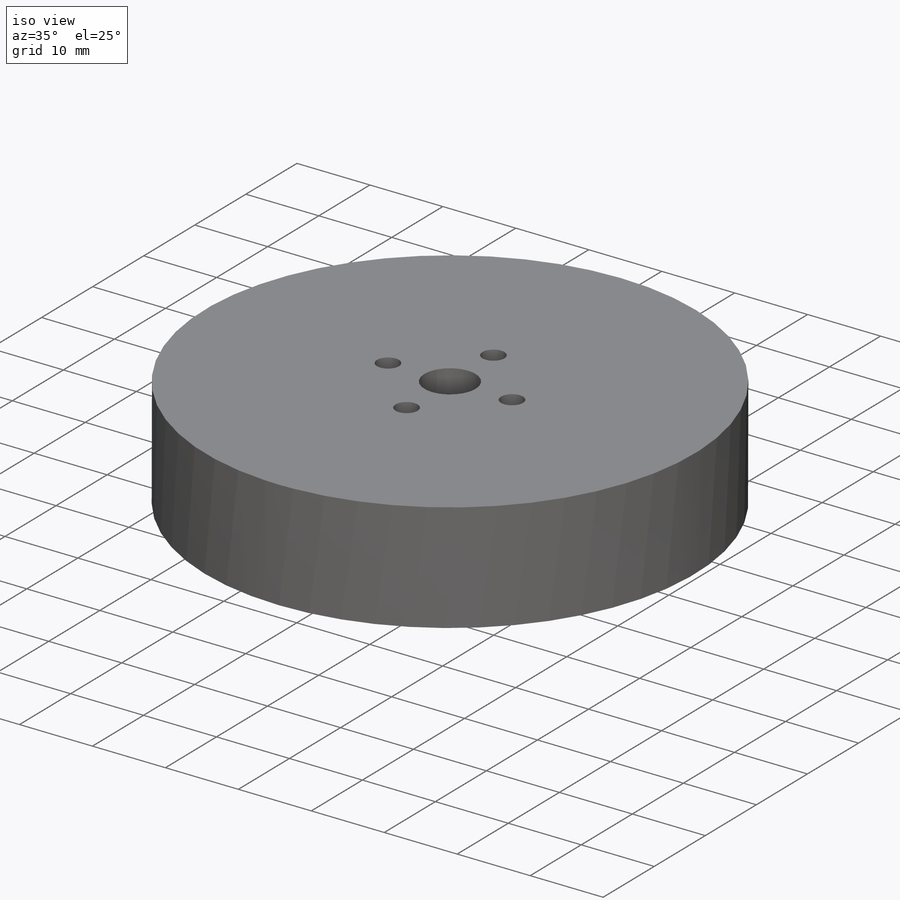
[diagram: iso view]
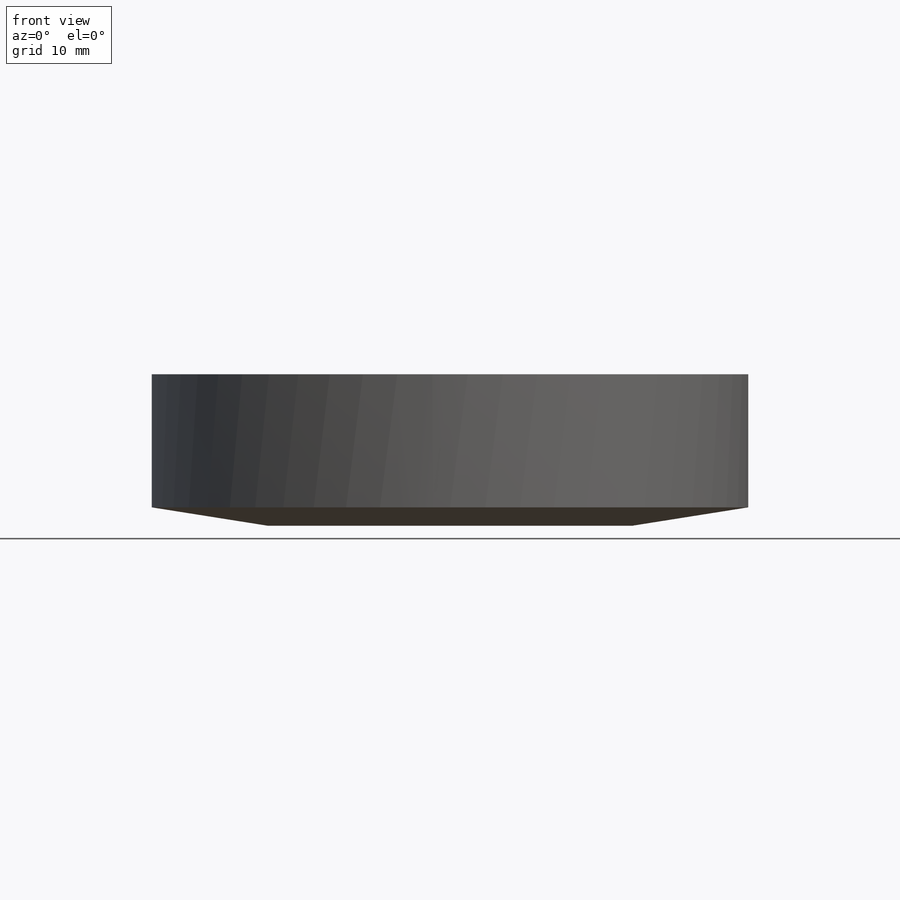
[diagram: front view]
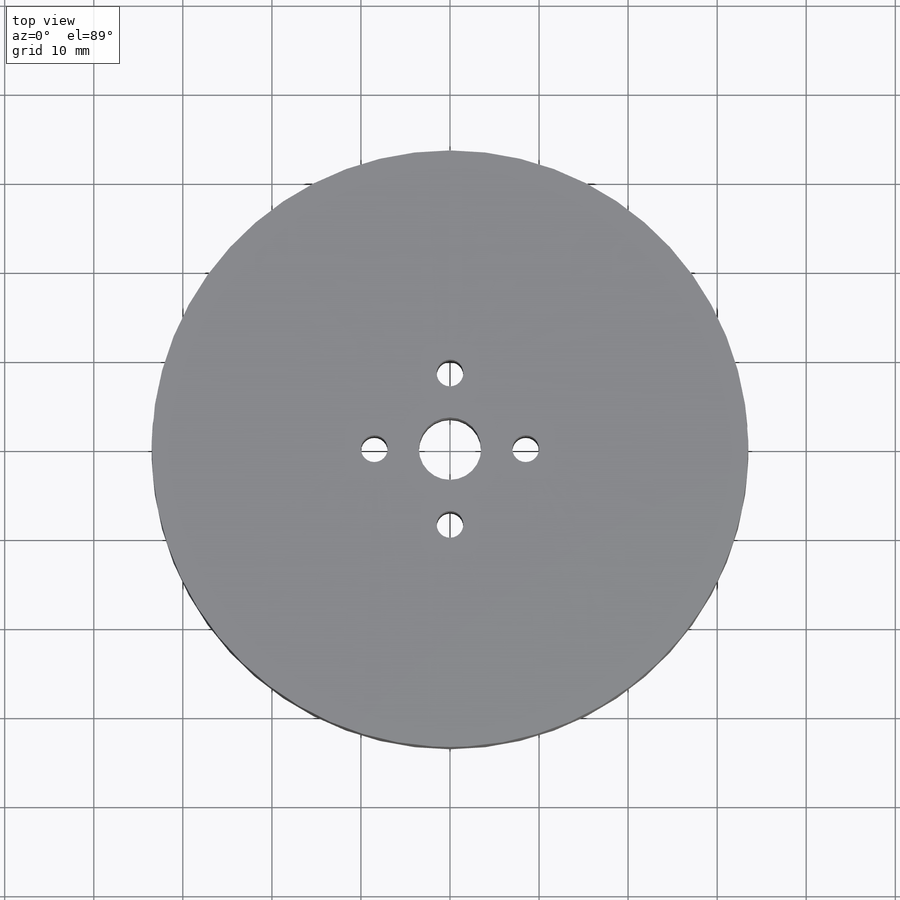
[diagram: top view]
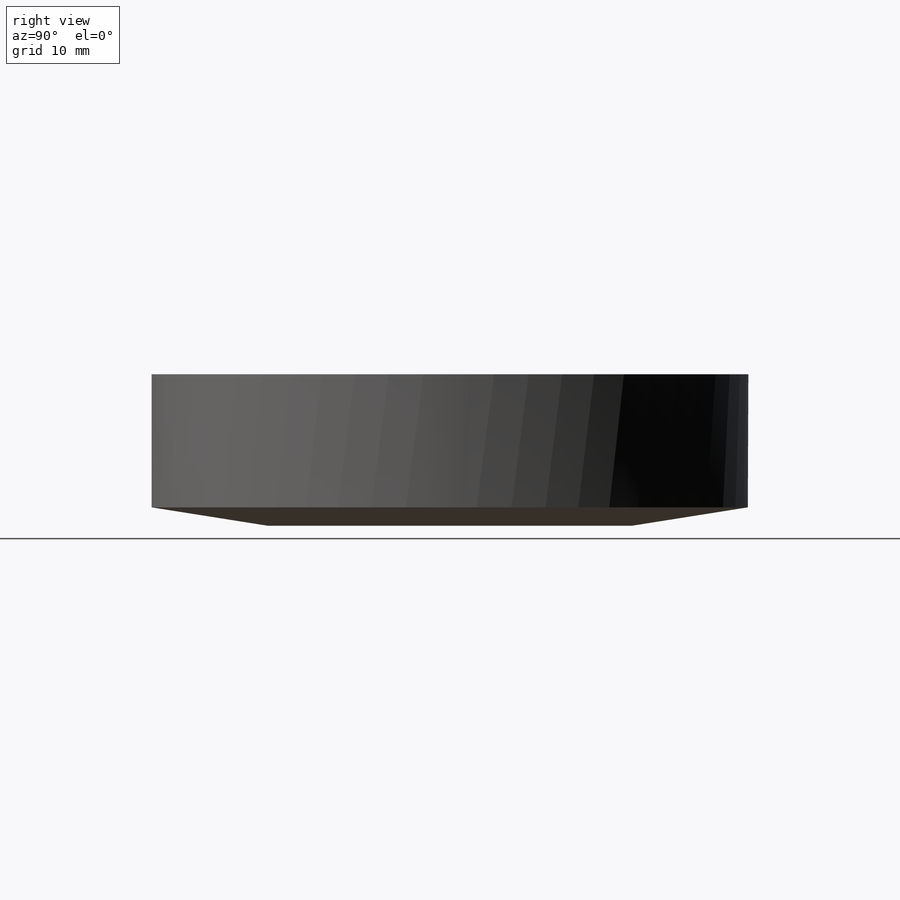
[diagram: right view]
SOLIDWORKS PART (.sldprt)
format: sldprt  version: not decoded by parser v0  size: 160,768 bytes
history: native  units: mm
features: sketch x3, cut_extrude x2, material x1, extrude x1, chamfer x1 (+13 scaffold rows collapsed)
feature tree (21):
  scaffold x13  (default folders/planes/origin — collapsed)
  material  "3.0205 (EN-AW 1200)"
  sketch  "Sketch1"  dims[D1=~33.326188mm]
  extrude  "Boss-Extrude1"  Depth=17mm
  sketch  "Sketch2"  dims[D1=~4.177688mm]
  cut_extrude  "Cut-Extrude1"  Depth=100mm
  sketch  "Sketch3"  dims[D1=8.5mm D2=8.5mm D3=8.5mm D4=8.5mm]
  cut_extrude  "Cut-Extrude2"  Depth=100mm
  chamfer  "Chamfer1"  Distance=13mm Angle=9deg
decode coverage: 7 of 7 modeling features carry decoded parameters
note: ~ marks probable driven/reference dimensions
note: suppression state not decoded; provenance and decode notes live in map.json
